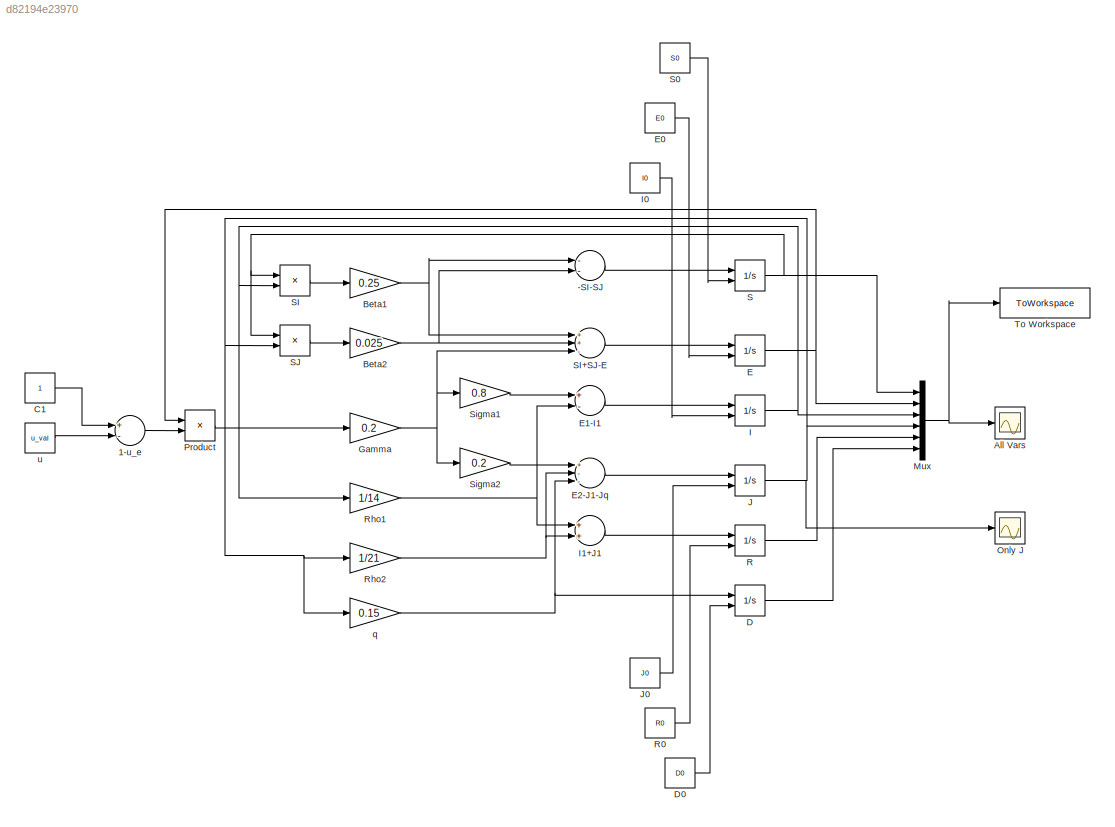
MODEL slx_d82194e23970
KIND model
CONFIG AbsTol = auto
CONFIG EnableMultiTasking = off
CONFIG FixedStep = auto
CONFIG MaxStep = auto
CONFIG MinStep = auto
CONFIG RelTol = 1e-6
CONFIG SampleTimeConstraint = Unconstrained
CONFIG Solver = VariableStepAuto
CONFIG SolverName = VariableStepAuto
CONFIG StartTime = 0.0
CONFIG StopTime = 15
BLOCK [Sum] -SI-SJ
  InputSameDT = off
  Inputs = --
  OutDataTypeStr = Inherit: Inherit via internal rule
  Ports = [2, 1]
  SaturateOnIntegerOverflow = off
BLOCK [Sum] 1-u_e
  InputSameDT = off
  Inputs = +-
  OutDataTypeStr = Inherit: Inherit via internal rule
  Ports = [2, 1]
  SaturateOnIntegerOverflow = off
BLOCK [Scope] All Vars
  Floating = off
  NumInputPorts = 1
  Ports = [1]
  ScopeSpecificationString = Simulink.scopes.TimeScopeBlockCfg('CurrentConfiguration', extmgr.ConfigurationSet(extmgr.Configuration('Core','General UI',true),extmgr.Configuration('Core','Source UI',true),extmgr.Configuration('Sources','WiredSimulink',true),extmgr.Configuration('Visuals','Time Domain',true,'SerializedDisplays',{struct('MinYLimReal','-0.1','MaxYLimReal','0.9','YLabelReal','','MinYLimMag','0.00000','MaxYLimMag',...<+1344ch>
BLOCK [Gain] Beta1
  Gain = 0.25
  OutDataTypeStr = Inherit: Inherit via internal rule
  ParamDataTypeStr = Inherit: Inherit via internal rule
  SaturateOnIntegerOverflow = off
BLOCK [Gain] Beta2
  Gain = 0.025
  OutDataTypeStr = Inherit: Inherit via internal rule
  ParamDataTypeStr = Inherit: Inherit via internal rule
  SaturateOnIntegerOverflow = off
BLOCK [Constant] C1
BLOCK [Integrator] D
  InitialConditionSource = external
  Ports = [2, 1]
BLOCK [Constant] D0
  Value = D0
BLOCK [Integrator] E
  InitialConditionSource = external
  Ports = [2, 1]
BLOCK [Constant] E0
  Value = E0
BLOCK [Sum] E1-I1
  InputSameDT = off
  Inputs = +-
  OutDataTypeStr = Inherit: Inherit via internal rule
  Ports = [2, 1]
  SaturateOnIntegerOverflow = off
BLOCK [Sum] E2-J1-Jq
  InputSameDT = off
  Inputs = +--
  OutDataTypeStr = Inherit: Inherit via internal rule
  Ports = [3, 1]
  SaturateOnIntegerOverflow = off
BLOCK [Gain] Gamma
  Gain = 0.2
  OutDataTypeStr = Inherit: Inherit via internal rule
  ParamDataTypeStr = Inherit: Inherit via internal rule
  SaturateOnIntegerOverflow = off
BLOCK [Integrator] I
  InitialConditionSource = external
  Ports = [2, 1]
BLOCK [Constant] I0
  Value = I0
BLOCK [Sum] I1+J1
  InputSameDT = off
  OutDataTypeStr = Inherit: Inherit via internal rule
  Ports = [2, 1]
  SaturateOnIntegerOverflow = off
BLOCK [Integrator] J
  InitialConditionSource = external
  Ports = [2, 1]
BLOCK [Constant] J0
  Value = J0
BLOCK [Mux] Mux
  DisplayOption = bar
  Inputs = 6
  Ports = [6, 1]
BLOCK [Scope] Only J
  Floating = off
  NumInputPorts = 1
  Ports = [1]
  ScopeSpecificationString = Simulink.scopes.TimeScopeBlockCfg('CurrentConfiguration', extmgr.ConfigurationSet(extmgr.Configuration('Core','General UI',true),extmgr.Configuration('Core','Source UI',true),extmgr.Configuration('Sources','WiredSimulink',true,'DataLoggingVariableName','ScopeData1'),extmgr.Configuration('Visuals','Time Domain',true,'SerializedDisplays',{struct('MinYLimReal','0.00353','MaxYLimReal','0.01819','YLabe...<+1387ch>
BLOCK [Product] Product
  InputSameDT = off
  OutDataTypeStr = Inherit: Inherit via internal rule
  Ports = [2, 1]
  RndMeth = Floor
  SaturateOnIntegerOverflow = off
BLOCK [Integrator] R
  InitialConditionSource = external
  Ports = [2, 1]
BLOCK [Constant] R0
  Value = R0
BLOCK [Gain] Rho1
  Gain = 1/14
  OutDataTypeStr = Inherit: Inherit via internal rule
  ParamDataTypeStr = Inherit: Inherit via internal rule
  SaturateOnIntegerOverflow = off
BLOCK [Gain] Rho2
  Gain = 1/21
  OutDataTypeStr = Inherit: Inherit via internal rule
  ParamDataTypeStr = Inherit: Inherit via internal rule
  SaturateOnIntegerOverflow = off
BLOCK [Integrator] S
  InitialConditionSource = external
  Ports = [2, 1]
BLOCK [Constant] S0
  Value = S0
BLOCK [Product] SI
  InputSameDT = off
  OutDataTypeStr = Inherit: Inherit via internal rule
  Ports = [2, 1]
  RndMeth = Floor
  SaturateOnIntegerOverflow = off
BLOCK [Sum] SI+SJ-E
  InputSameDT = off
  Inputs = ++-
  OutDataTypeStr = Inherit: Inherit via internal rule
  Ports = [3, 1]
  SaturateOnIntegerOverflow = off
BLOCK [Product] SJ
  InputSameDT = off
  OutDataTypeStr = Inherit: Inherit via internal rule
  Ports = [2, 1]
  RndMeth = Floor
  SaturateOnIntegerOverflow = off
BLOCK [Gain] Sigma1
  Gain = 0.8
  OutDataTypeStr = Inherit: Inherit via internal rule
  ParamDataTypeStr = Inherit: Inherit via internal rule
  SaturateOnIntegerOverflow = off
BLOCK [Gain] Sigma2
  Gain = 0.2
  OutDataTypeStr = Inherit: Inherit via internal rule
  ParamDataTypeStr = Inherit: Inherit via internal rule
  SaturateOnIntegerOverflow = off
BLOCK [ToWorkspace] To Workspace
  FixptAsFi = on
  MaxDataPoints = inf
  Ports = [1]
  SampleTime = -1
  SaveFormat = Timeseries
  VariableName = sim_data
BLOCK [Gain] q
  Gain = 0.15
  OutDataTypeStr = Inherit: Inherit via internal rule
  ParamDataTypeStr = Inherit: Inherit via internal rule
  SaturateOnIntegerOverflow = off
BLOCK [Constant] u
  Value = u_val
LINE -SI-SJ:1 -> S:1
LINE 1-u_e:1 -> Product:2
NET Beta1:1 -> -SI-SJ:1, SI+SJ-E:1
NET Beta2:1 -> -SI-SJ:2, SI+SJ-E:2
LINE C1:1 -> 1-u_e:1
LINE D0:1 -> D:2
LINE D:1 -> Mux:6
LINE E0:1 -> E:2
LINE E1-I1:1 -> I:1
LINE E2-J1-Jq:1 -> J:1
NET E:1 -> Mux:2, Product:1
NET Gamma:1 -> SI+SJ-E:3, Sigma1:1, Sigma2:1
LINE I0:1 -> I:2
LINE I1+J1:1 -> R:1
NET I:1 -> Mux:3, Rho1:1, SI:2
LINE J0:1 -> J:2
NET J:1 -> Mux:4, Only J:1, Rho2:1, SJ:2, q:1
NET Mux:1 -> All Vars:1, To Workspace:1
LINE Product:1 -> Gamma:1
LINE R0:1 -> R:2
LINE R:1 -> Mux:5
NET Rho1:1 -> E1-I1:2, I1+J1:1
NET Rho2:1 -> E2-J1-Jq:2, I1+J1:2
LINE S0:1 -> S:2
NET S:1 -> Mux:1, SI:1, SJ:1
LINE SI+SJ-E:1 -> E:1
LINE SI:1 -> Beta1:1
LINE SJ:1 -> Beta2:1
LINE Sigma1:1 -> E1-I1:1
LINE Sigma2:1 -> E2-J1-Jq:1
NET q:1 -> D:1, E2-J1-Jq:3
LINE u:1 -> 1-u_e:2
note: NET lines group one-source signal fan-out (src -> all destinations, sorted); 1:1 wires keep LINE
